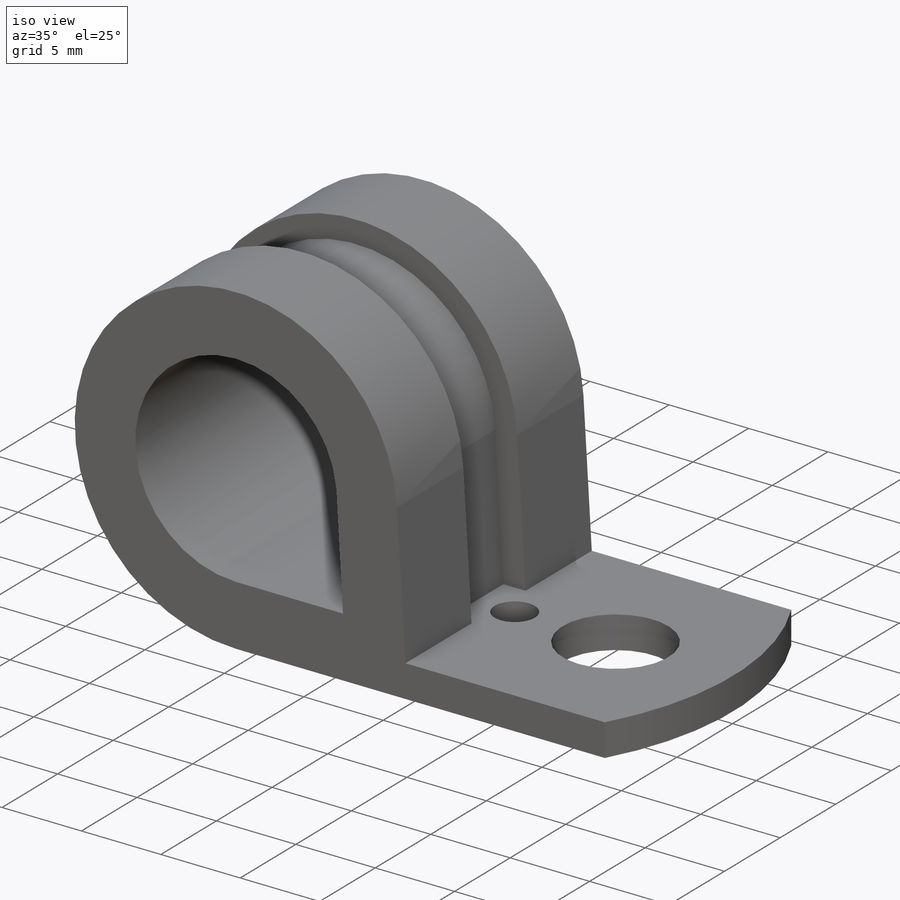
[diagram: iso view]
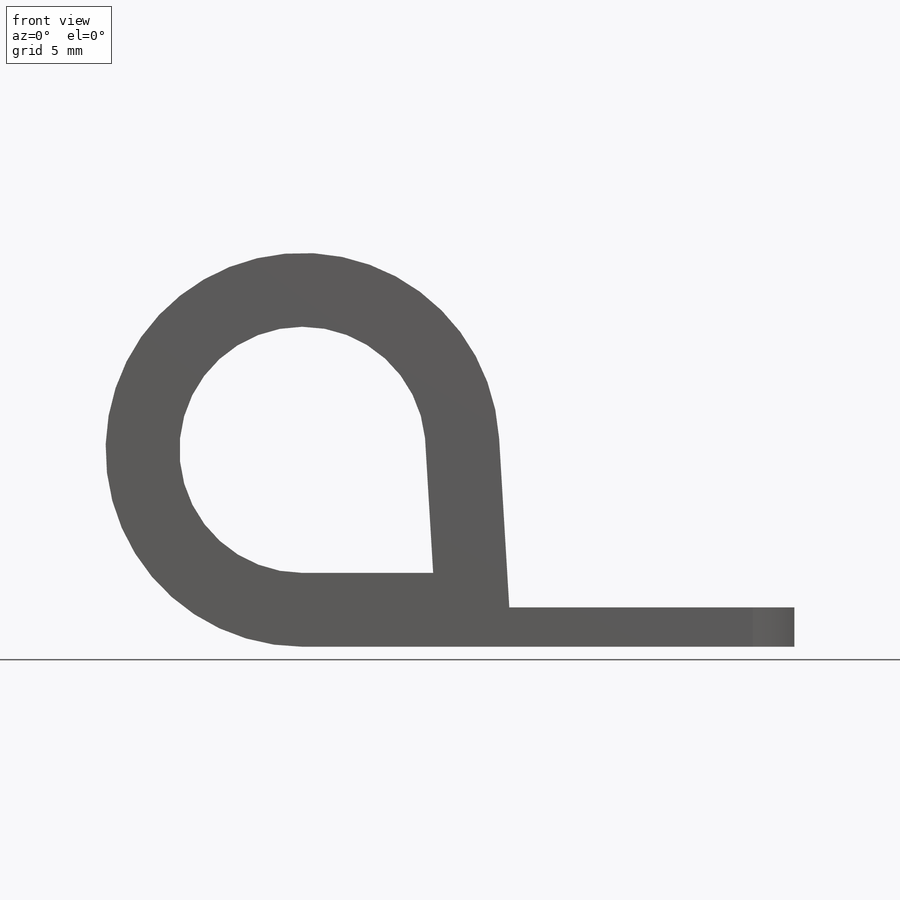
[diagram: front view]
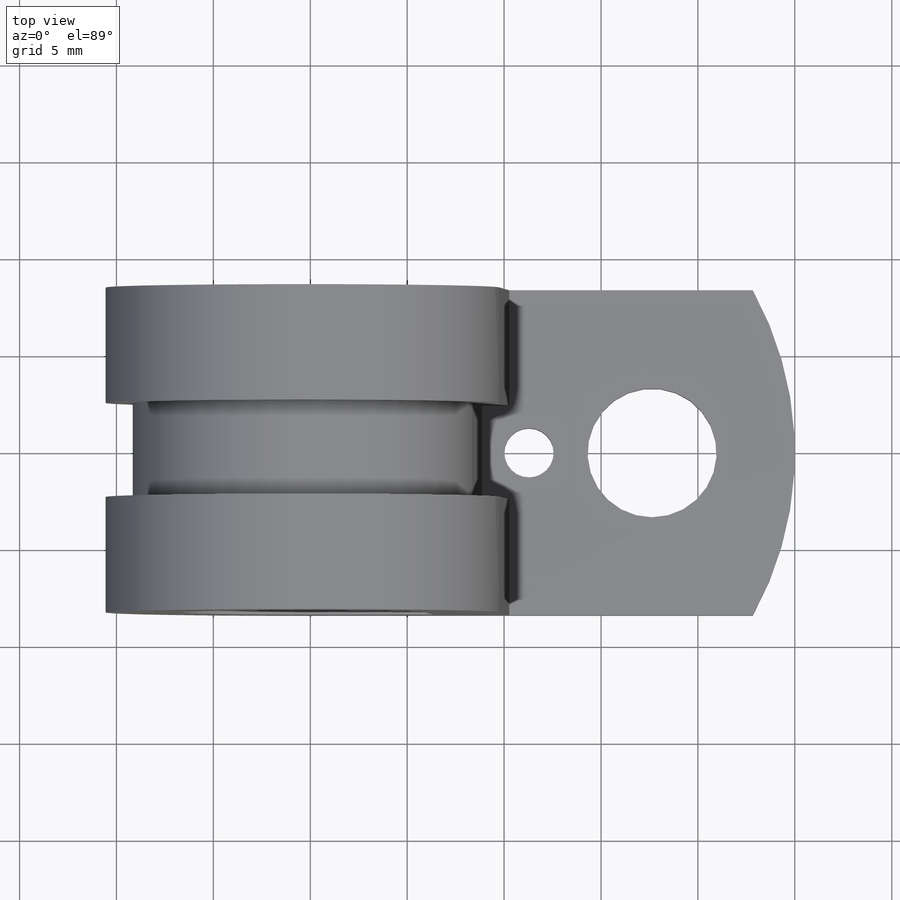
[diagram: top view]
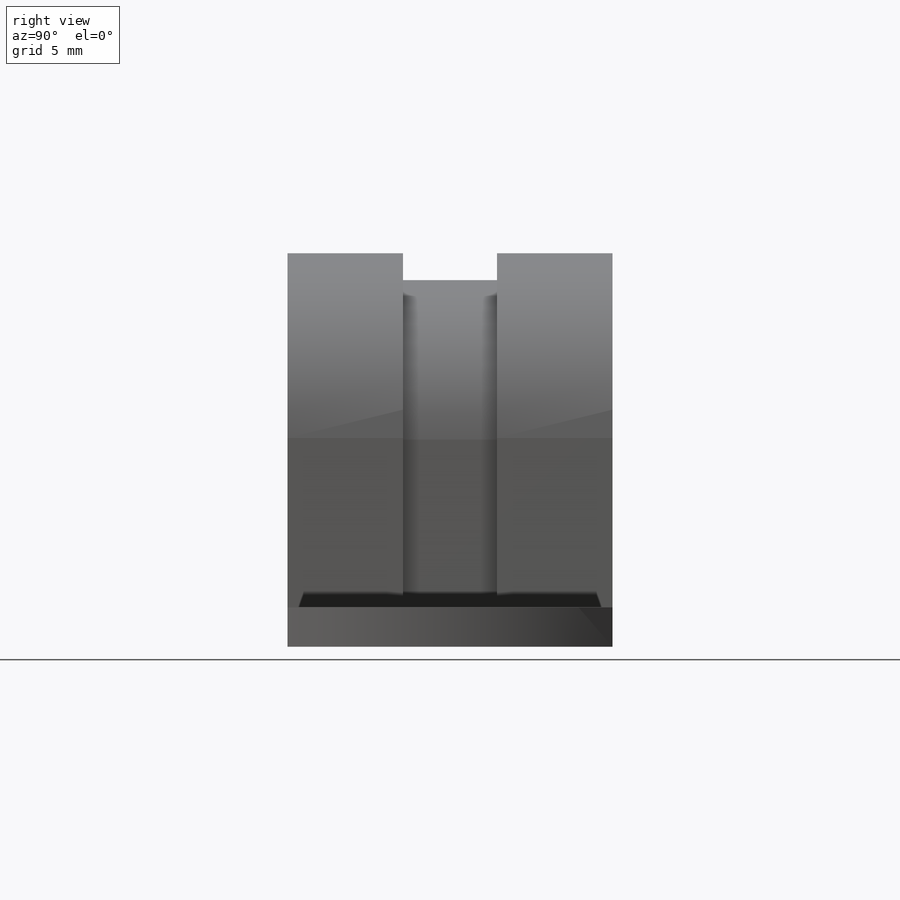
[diagram: right view]
SOLIDWORKS PART (.sldprt)
format: sldprt  version: not decoded by parser v0  size: 241,664 bytes
history: native  units: mm
features: sketch x4, cut_extrude x3, plane x2, material x1, extrude x1 (+10 scaffold rows collapsed)
feature tree (21):
  scaffold x10  (default folders/planes/origin — collapsed)
  material  "Material <not specified>"
  plane  "Center plane"
  sketch  "Sketch1"  dims[D1=12.7mm D2=3.81mm D3=14.732mm D4=35.56mm D5=2.032mm]
  extrude  "Boss-Extrude1"  Depth=16.764mm
  sketch  "Sketch3"
  cut_extrude  "Cut-Extrude2"  [1 undecoded]
  sketch  "Sketch4"  dims[D1=6.6548mm D2=2.54mm D3=6.35mm]
  cut_extrude  "Cut-Extrude3"  [1 undecoded]
  sketch  "Sketch5"  dims[D1=1.397mm]
  cut_extrude  "Cut-Extrude4"  Depth=4.8514mm
  plane  "Lock plane"
decode coverage: 5 of 8 modeling features carry decoded parameters
note: 2 parameter values undecoded
note: suppression state not decoded; provenance and decode notes live in map.json
